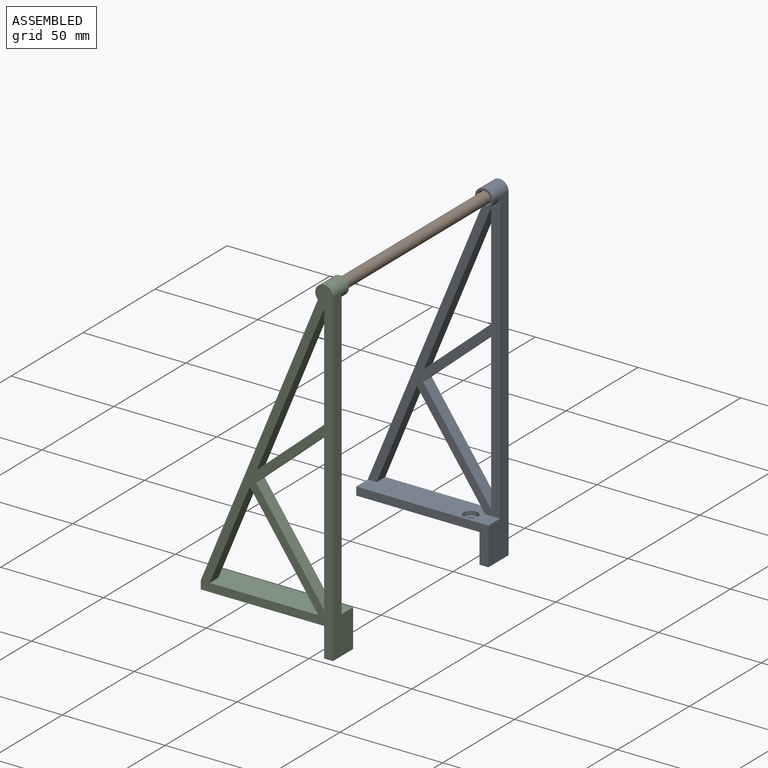
[diagram: assembled view]
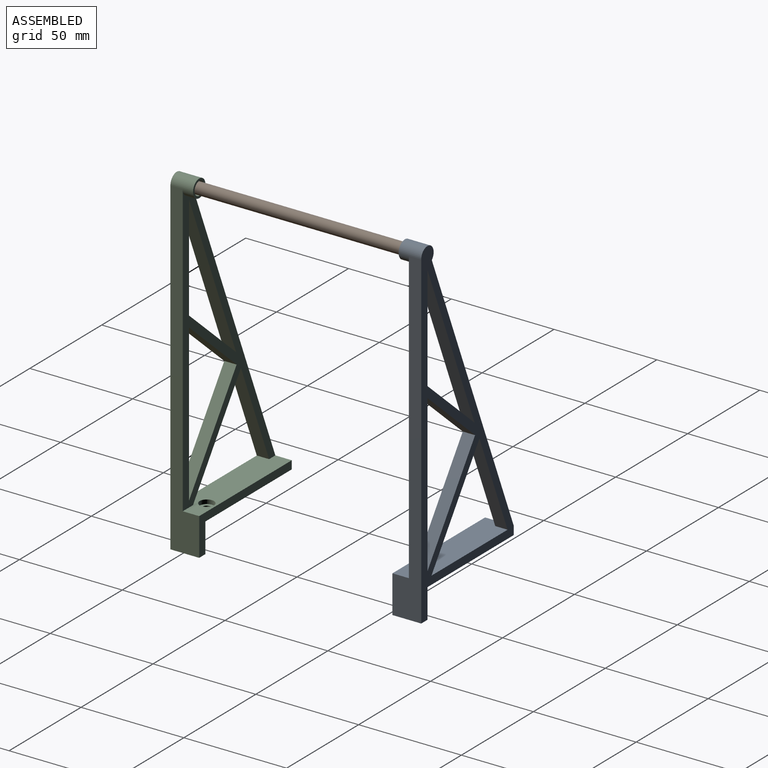
[diagram: assembled view, second angle]
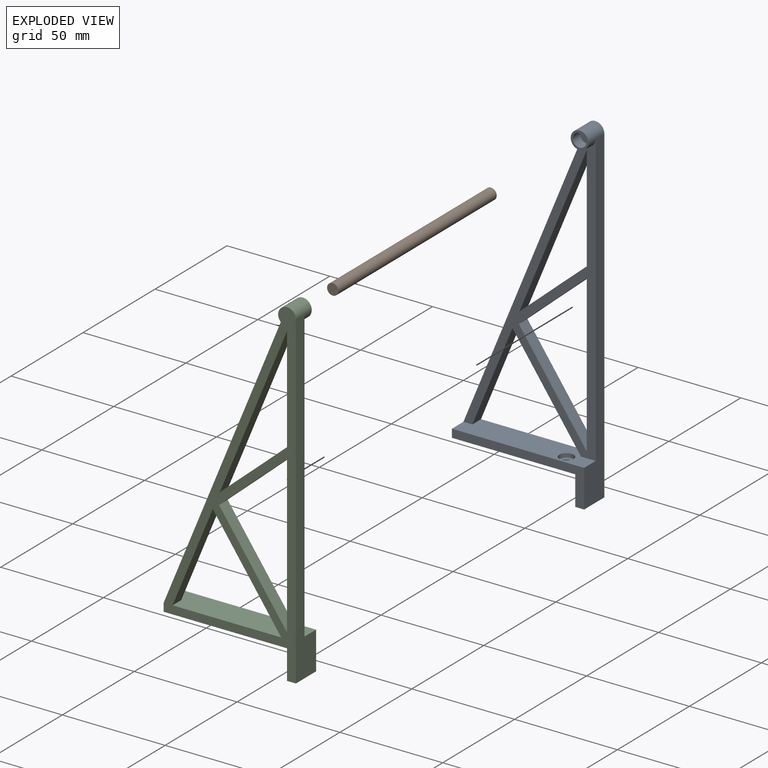
[diagram: exploded view]
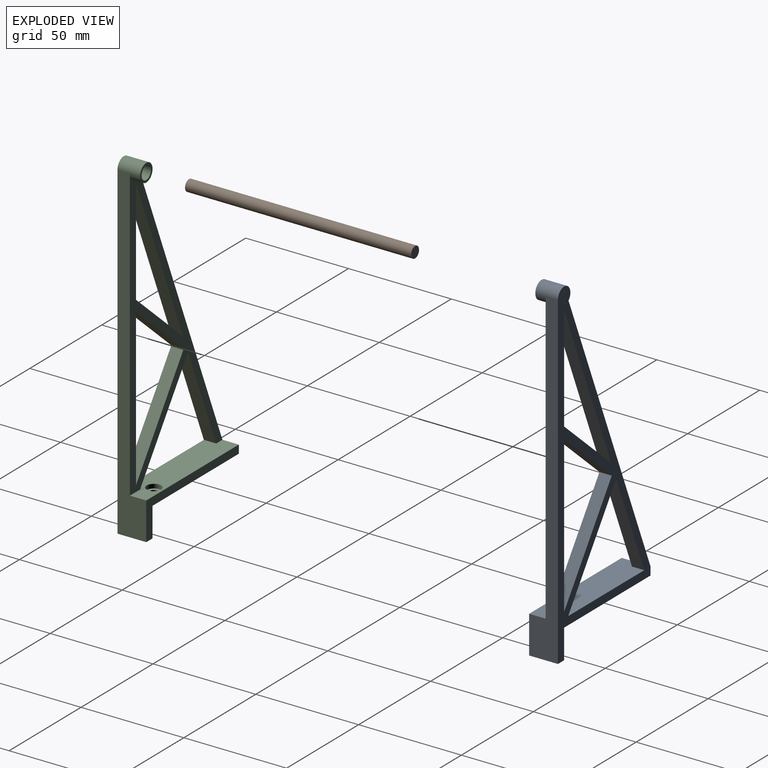
[diagram: exploded view, second angle]
ASSEMBLY  parts=3 mates=2
PART A: 25 faces, bbox 64.3x14x164.3 mm
  f0: plane 164.34x64.32mm, normal (0,1,0), area 1989.3mm2, adj f2,f3,f4,f5,f6,f7,f8,f10
  f1: plane 6.5x6.5mm, normal (0,-1,0), area 33.2mm2, adj f13
  f2: plane 138.6x56.96mm, normal (-0.92,0,0.38), area 899.1mm2, adj f0,f9,f14,f18
  f3: plane 76.14x6mm, normal (-1,0,0), area 456.8mm2, adj f0,f4,f5,f9
  f4: plane 47.23x33.1mm, normal (0.82,0,0.57), area 346.1mm2, adj f0,f3,f5,f9
  f5: plane 33.1x28.91mm, normal (0.66,0,-0.75), area 263.7mm2, adj f0,f3,f4,f9
  f6: plane 51.06x6mm, normal (-1,0,0), area 306.4mm2, adj f0,f7,f8,f9
  f7: plane 32.73x28.58mm, normal (-0.66,0,0.75), area 260.7mm2, adj f0,f6,f8,f9
  f8: plane 79.64x32.73mm, normal (0.92,0,-0.38), area 516.6mm2, adj f0,f6,f7,f9
  f9: plane 141.68x64.32mm, normal (0,-1,0), area 1611.3mm2, adj f2,f3,f4,f5,f6,f7,f8,f10
  f10: plane 47.55x19.54mm, normal (0.92,0,-0.38), area 308.5mm2, adj f0,f9,f12,f17
  f11: plane 160.01x14mm, normal (1,0,0), area 1106.8mm2, adj f0,f9,f14,f17,f21,f22
  f12: plane 47.55x33.33mm, normal (-0.82,0,-0.57), area 348.4mm2, adj f0,f9,f10,f17
  f13: cylinder r=3.25mm len=6.5mm, axis (0,1,0), area 102.1mm2, adj f1,f15
  f14: cylinder r=4.32mm len=11mm, axis (0,1,0), area 237.9mm2, adj f0,f2,f9,f11,f15
  f15: plane 8.65x8.65mm, normal (0,-1,0), area 25.6mm2, adj f13,f14
  f16: cylinder r=2mm len=4mm, axis (0,0,1), area 25.1mm2, adj f19,f24
  f17: plane 64.32x14mm, normal (0,0,1), area 793.3mm2, adj f0,f9,f10,f11,f12,f18,f22,f23
  f18: plane 14x4mm, normal (-1,0,0), area 56mm2, adj f0,f2,f17,f19,f22
  f19: plane 60x14mm, normal (0,0,-1), area 827.4mm2, adj f0,f16,f18,f20,f22
  f20: plane 14.34x14mm, normal (-1,0,0), area 200.7mm2, adj f0,f19,f21,f22
  f21: plane 14x4.32mm, normal (0,0,-1), area 60.5mm2, adj f0,f11,f20,f22
  f22: plane 64.32x18.34mm, normal (0,-1,0), area 319.3mm2, adj f11,f17,f18,f19,f20,f21
  f23: cylinder r=3.5mm len=7mm, axis (0,0,1), area 44mm2, adj f17,f24
  f24: plane 7x7mm, normal (0,0,1), area 25.9mm2, adj f16,f23
PART B: 3 faces, bbox 110x5.5x5.5 mm
  f0: cylinder r=2.75mm len=110mm, axis (-1,0,0), area 1900.7mm2, adj f1,f2
  f1: plane 5.5x5.5mm, normal (1,0,0), area 23.8mm2, adj f0
  f2: plane 5.5x5.5mm, normal (-1,0,0), area 23.8mm2, adj f0
PART C: 25 faces, bbox 64.3x14x164.3 mm
  f0: plane 164.34x64.32mm, normal (0,-1,0), area 1989.3mm2, adj f2,f3,f4,f5,f6,f7,f8,f10
  f1: plane 6.5x6.5mm, normal (0,1,0), area 33.2mm2, adj f13
  f2: plane 138.6x56.96mm, normal (-0.92,0,0.38), area 899.1mm2, adj f0,f9,f14,f18
  f3: plane 76.14x6mm, normal (-1,0,0), area 456.8mm2, adj f0,f4,f5,f9
  f4: plane 47.23x33.1mm, normal (0.82,0,0.57), area 346.1mm2, adj f0,f3,f5,f9
  f5: plane 33.1x28.91mm, normal (0.66,0,-0.75), area 263.7mm2, adj f0,f3,f4,f9
  f6: plane 51.06x6mm, normal (-1,0,0), area 306.4mm2, adj f0,f7,f8,f9
  f7: plane 32.73x28.58mm, normal (-0.66,0,0.75), area 260.7mm2, adj f0,f6,f8,f9
  f8: plane 79.64x32.73mm, normal (0.92,0,-0.38), area 516.6mm2, adj f0,f6,f7,f9
  f9: plane 141.68x64.32mm, normal (0,1,0), area 1611.3mm2, adj f2,f3,f4,f5,f6,f7,f8,f10
  f10: plane 47.55x19.54mm, normal (0.92,0,-0.38), area 308.5mm2, adj f0,f9,f12,f17
  f11: plane 160.01x14mm, normal (1,0,0), area 1106.8mm2, adj f0,f9,f14,f17,f21,f22
  f12: plane 47.55x33.33mm, normal (-0.82,0,-0.57), area 348.4mm2, adj f0,f9,f10,f17
  f13: cylinder r=3.25mm len=6.5mm, axis (0,-1,0), area 102.1mm2, adj f1,f15
  f14: cylinder r=4.32mm len=11mm, axis (0,-1,0), area 237.9mm2, adj f0,f2,f9,f11,f15
  f15: plane 8.65x8.65mm, normal (0,1,0), area 25.6mm2, adj f13,f14
  f16: cylinder r=2mm len=4mm, axis (0,0,1), area 25.1mm2, adj f19,f24
  f17: plane 64.32x14mm, normal (0,0,1), area 793.3mm2, adj f0,f9,f10,f11,f12,f18,f22,f23
  f18: plane 14x4mm, normal (-1,0,0), area 56mm2, adj f0,f2,f17,f19,f22
  f19: plane 60x14mm, normal (0,0,-1), area 827.4mm2, adj f0,f16,f18,f20,f22
  f20: plane 14.34x14mm, normal (-1,0,0), area 200.7mm2, adj f0,f19,f21,f22
  f21: plane 14x4.32mm, normal (0,0,-1), area 60.5mm2, adj f0,f11,f20,f22
  f22: plane 64.32x18.34mm, normal (0,1,0), area 319.3mm2, adj f11,f17,f18,f19,f20,f21
  f23: cylinder r=3.5mm len=7mm, axis (0,0,1), area 44mm2, adj f17,f24
  f24: plane 7x7mm, normal (0,0,1), area 25.9mm2, adj f16,f23
PLACE A t=(58.92,219.72,95.56)mm fixed
PLACE B rot(axis=(0.48,0.48,0.73),107.8deg) t=(58.92,158.72,241.24)mm
PLACE C t=(58.92,97.72,95.56)mm fixed
MATE revolute B.f0 <-> A.f13  axis (0,1,0) through (58.92,213.72,241.24)mm
MATE revolute B.f0 <-> C.f13  axis (0,-1,0) through (58.92,103.72,241.24)mm
